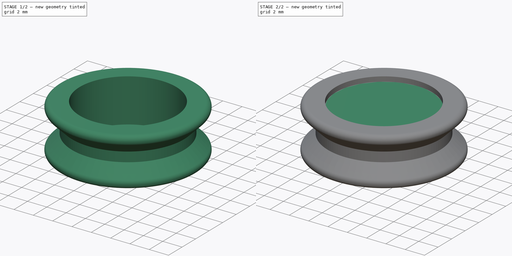
[diagram: build sequence overview — one tinted view per stage of 2, left to right]
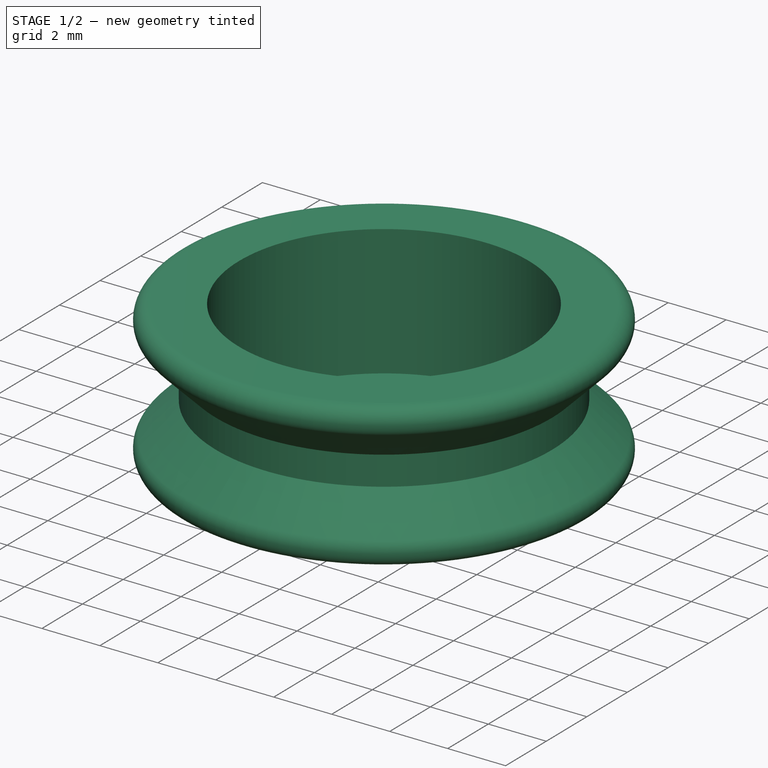
[diagram: stage 1 of 2 — iso view after this stage's code; geometry added in this stage tinted green]
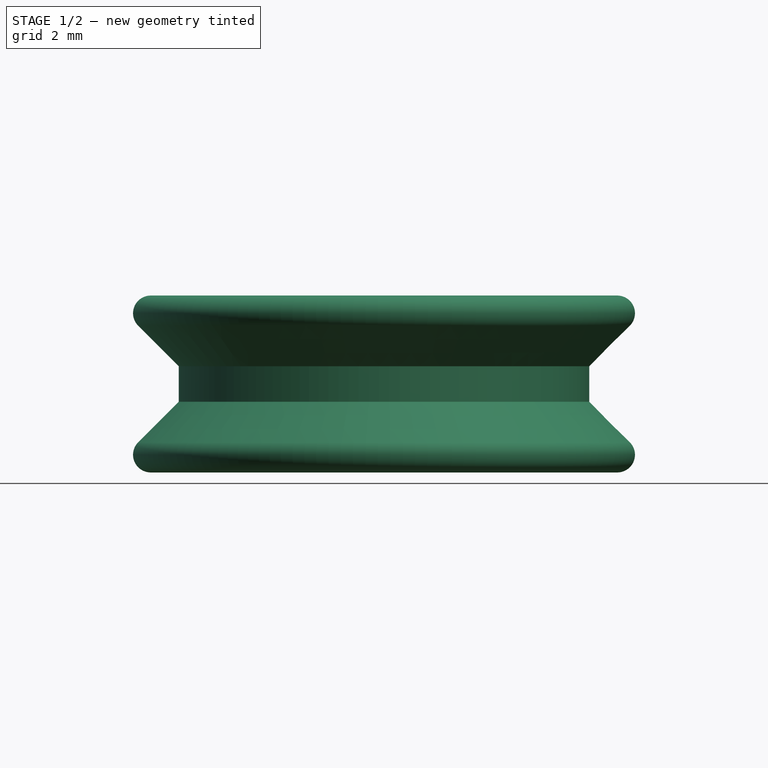
[diagram: stage 1 of 2 — front view after this stage's code; geometry added in this stage tinted green]
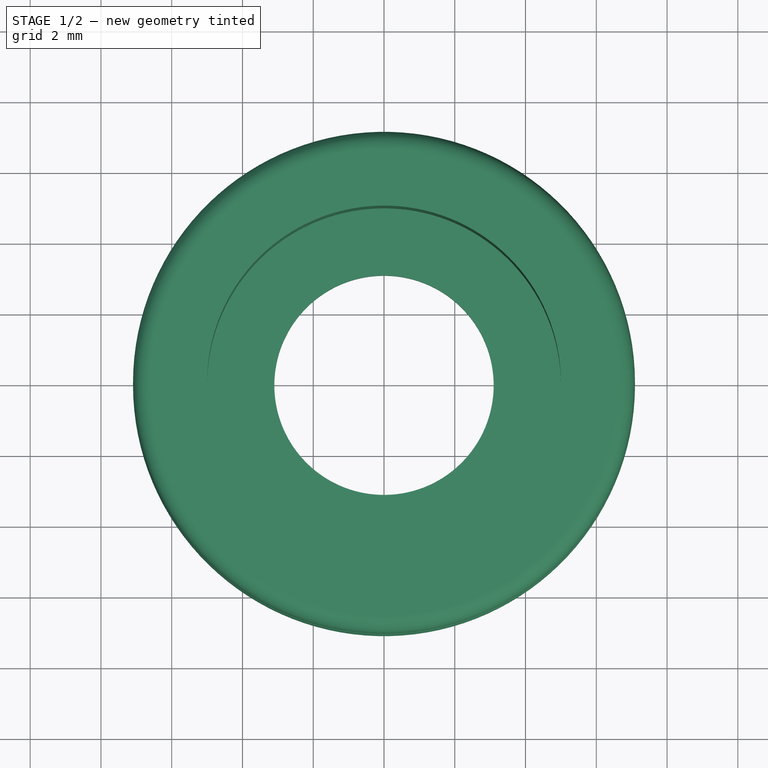
[diagram: stage 1 of 2 — top view after this stage's code; geometry added in this stage tinted green]
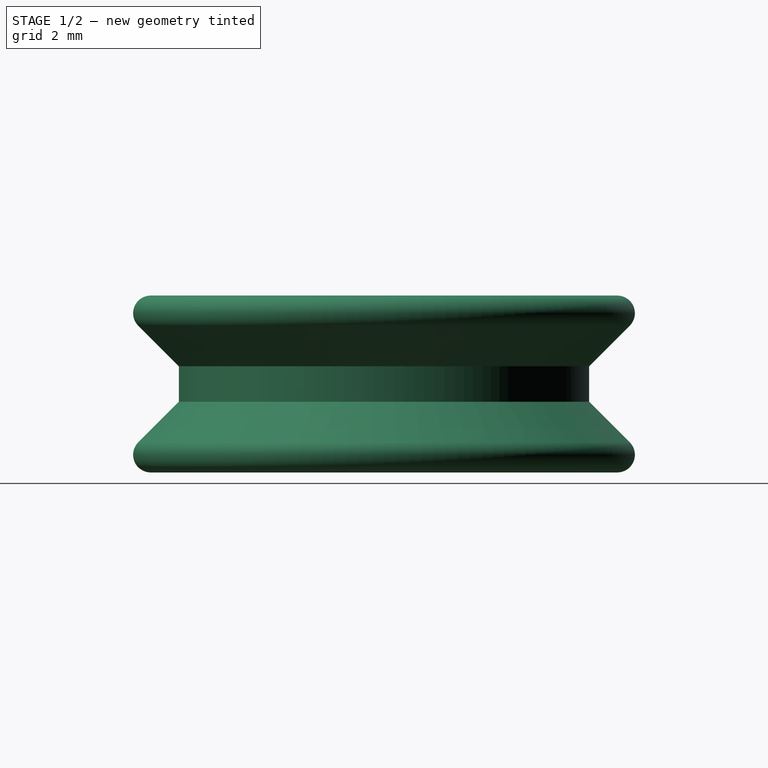
[diagram: stage 1 of 2 — right view after this stage's code; geometry added in this stage tinted green]
FCSTD DOCUMENT  (FreeCAD 0.16R6698 (Git))
Label: FrontIdler
License: All rights reserved
LicenseURL: http://en.wikipedia.org/wiki/All_rights_reserved
objects: Sketcher::SketchObject×1, Part::Cylinder×1, PartDesign::Revolution×1, Part::Fillet×1, Part::Feature×1
note: 6 computed .brp shape members not serialized (recipe doc carries the construction recipe); baked Part::Feature solids carry a one-line shape summary decoded from their .brp

FEATURE [PartDesign::Revolution] Revolution
  Angle = 360
  Axis = (0,0,1)
  Base = (0,0,0)
  Placement = pos=(0,0,0) rot=(1,0,0;1.5708rad)
  ReferenceAxis = -> Sketch [V_Axis]
  Sketch = -> Sketch
FEATURE [Part::Fillet] Fillet
  Base = -> Revolution
  Edges = 2 edges r=0.5: [Edge2,Edge10]
FEATURE [Part::Feature] Fillet001  label="FrontIdler"
  shape: bbox 15.35 x 15.35 x 5 mm, 10 faces (baked)
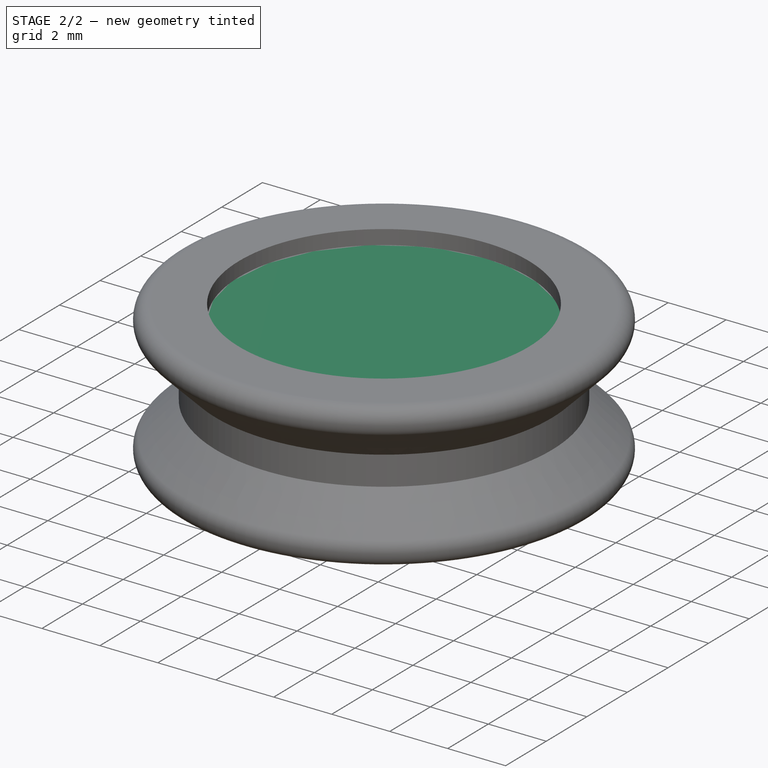
[diagram: stage 2 of 2 — iso view after this stage's code; geometry added in this stage tinted green]
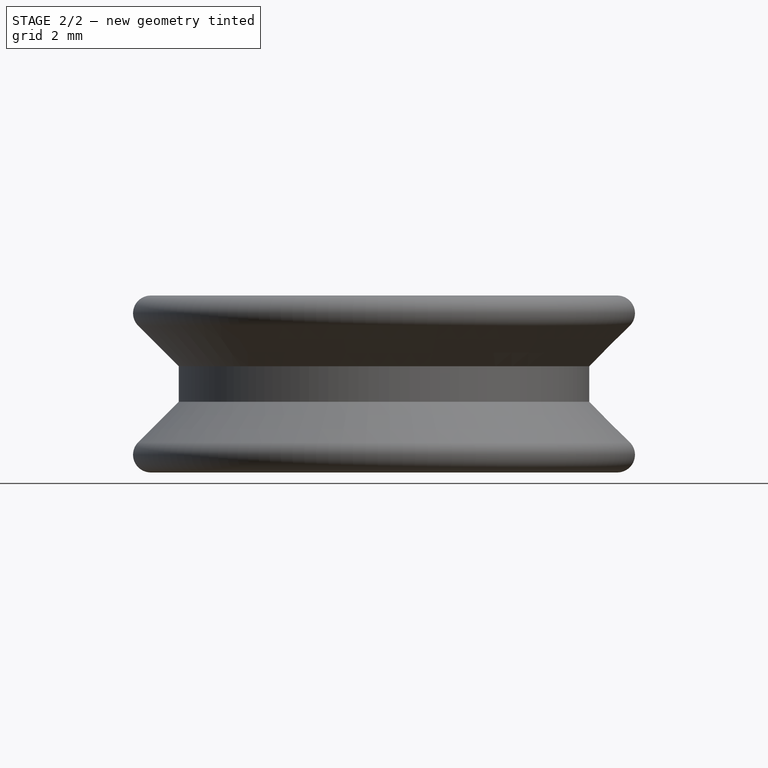
[diagram: stage 2 of 2 — front view after this stage's code; geometry added in this stage tinted green]
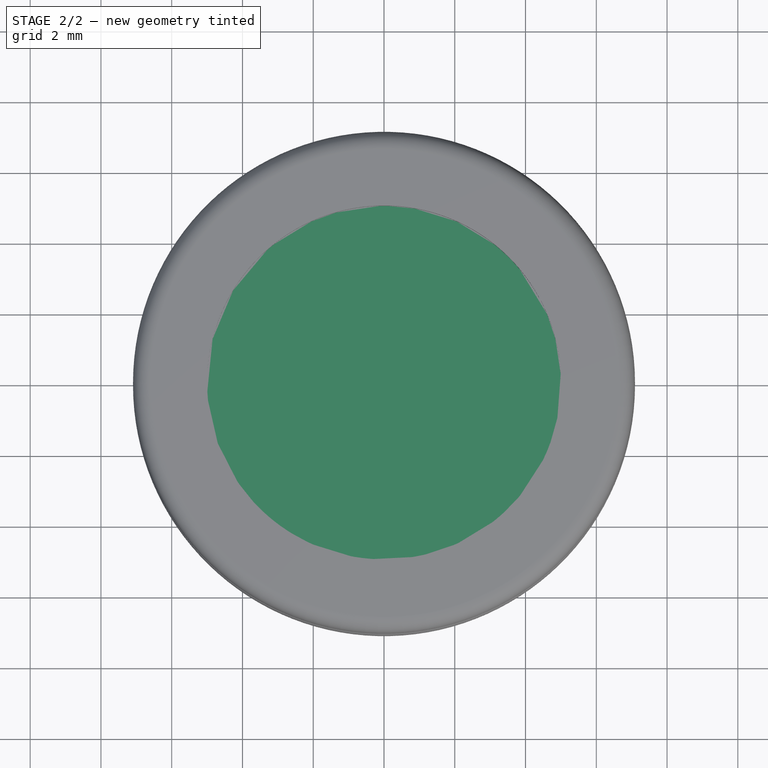
[diagram: stage 2 of 2 — top view after this stage's code; geometry added in this stage tinted green]
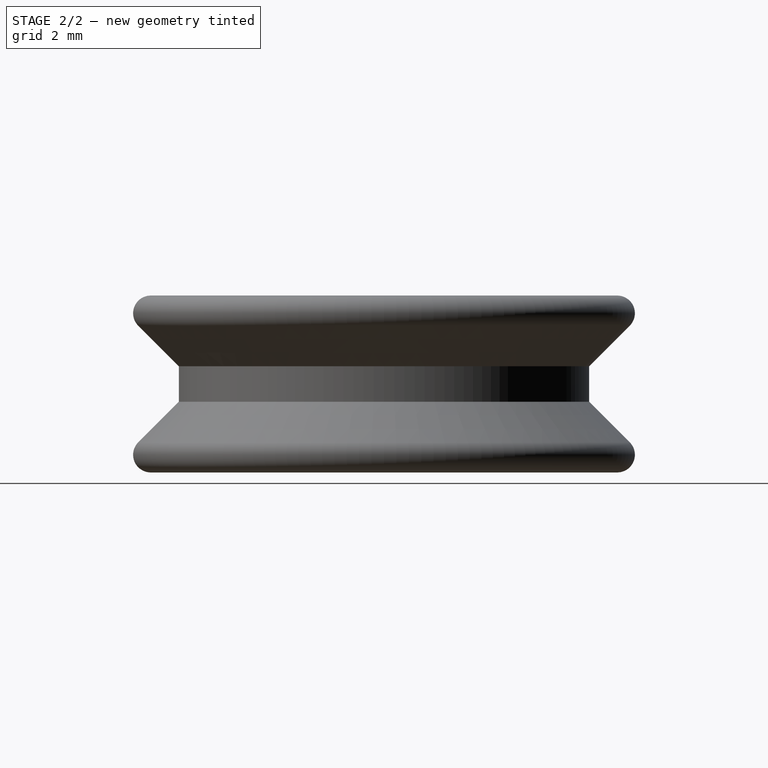
[diagram: stage 2 of 2 — right view after this stage's code; geometry added in this stage tinted green]
FEATURE [Sketcher::SketchObject] Sketch  label="Base"
  Placement = pos=(0,0,0) rot=(1,0,0;1.5708rad)
  sketch-geometry (11):
    g0: LineSegment StartX=-3.1 StartY=0 StartZ=0 EndX=-3.1 EndY=-0.5 EndZ=0
    g1: LineSegment StartX=-3.1 StartY=-0.5 StartZ=0 EndX=-7.8 EndY=-0.5 EndZ=0
    g2: LineSegment StartX=-7.8 StartY=-0.5 StartZ=0 EndX=-5.8 EndY=1.5 EndZ=0
    g3: LineSegment StartX=-5.8 StartY=2.5 StartZ=0 EndX=-7.8 EndY=4.5 EndZ=0
    g4: LineSegment StartX=-7.8 StartY=4.5 StartZ=0 EndX=-5 EndY=4.5 EndZ=0
    g5: LineSegment StartX=-5 StartY=4.5 StartZ=0 EndX=-5 EndY=0 EndZ=0
    g6: LineSegment StartX=-5 StartY=0 StartZ=0 EndX=-3.1 EndY=0 EndZ=0
    g7: LineSegment [constr] StartX=-7.8 StartY=4.5 StartZ=0 EndX=-7.8 EndY=-0.5 EndZ=0
    g8: LineSegment StartX=-5.8 StartY=2.5 StartZ=0 EndX=-5.8 EndY=1.5 EndZ=0
    g9: ArcOfCircle [constr] CenterX=-6.59289 CenterY=4 CenterZ=0 NormalX=0 NormalY=0 NormalZ=1 Radius=0.5 StartAngle=1.5708 EndAngle=3.92701
    g10: LineSegment [constr] StartX=-7.09289 StartY=4 StartZ=0 EndX=-5 EndY=4 EndZ=0
  constraints (36):
    c: Coincident(g0,g1)
    c: Coincident(g1,g2)
    c: Coincident(g3,g4)
    c: Coincident(g4,g5)
    c: Coincident(g5,g6)
    c: Coincident(g6,g0)
    c: Horizontal(g1)
    c: Horizontal(g6)
    c: Horizontal(g4)
    c: Vertical(g5)
    c: Vertical(g0)
    c: Perpendicular(g2,g3)
    c: Angle(g3,g4) = 0.785398
    c: PointOnObject(g0,g-1)
    c: DistanceX(g5) = -5
    c: DistanceY(g0,g0) = 0.5
    c: DistanceY(g1,g3) = 5
    c: Coincident(g7,g1)
    c: Coincident(g7,g3)
    c: Vertical(g7)
    c: Vertical(g8)
    c: Coincident(g3,g8)
    c: Coincident(g8,g2)
    c: DistanceX(g2) = -5.8
    c: DistanceY(g8,g8) = 1
    c: DistanceX(g0) = -3.1
    c: PointOnObject(g9,g4)
    c: PointOnObject(g9,g3)
    c: Tangent(g9,g4)
    c: Tangent(g9,g3)
    c: Radius(g9) = 0.5
    c: PointOnObject(g10,g5)
    c: Horizontal(g10)
    c: PointOnObject(g10,g9)
    c: PointOnObject(g9,g10)
    c: DistanceX(g10) = -7.09289
FEATURE [Part::Cylinder] Cylinder004  label="623ZZ"
  Angle = 360
  Height = 4
  Radius = 5
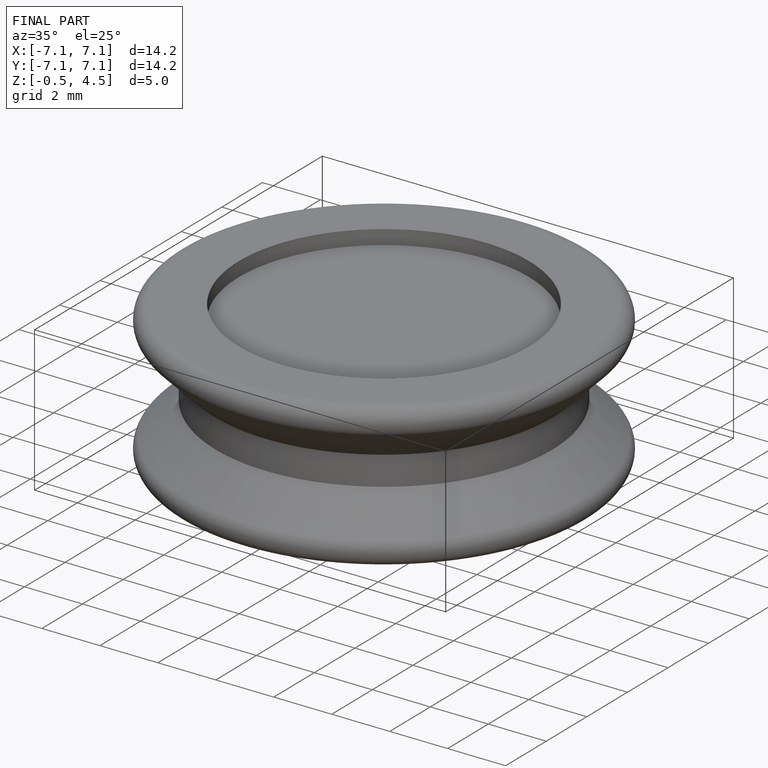
[diagram: finished part — iso view with bounding-box wireframe]
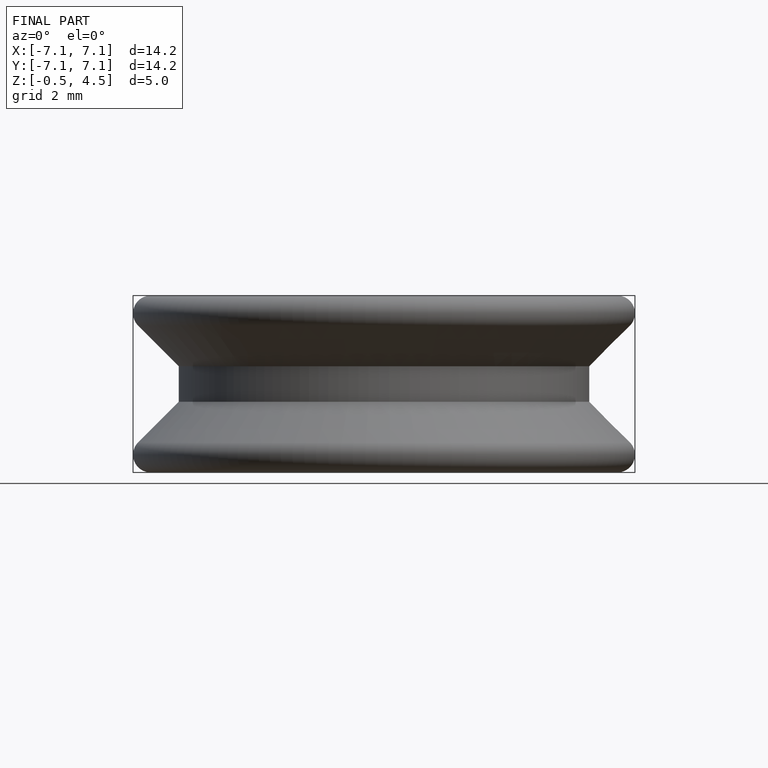
[diagram: finished part — front view with bounding-box wireframe]
